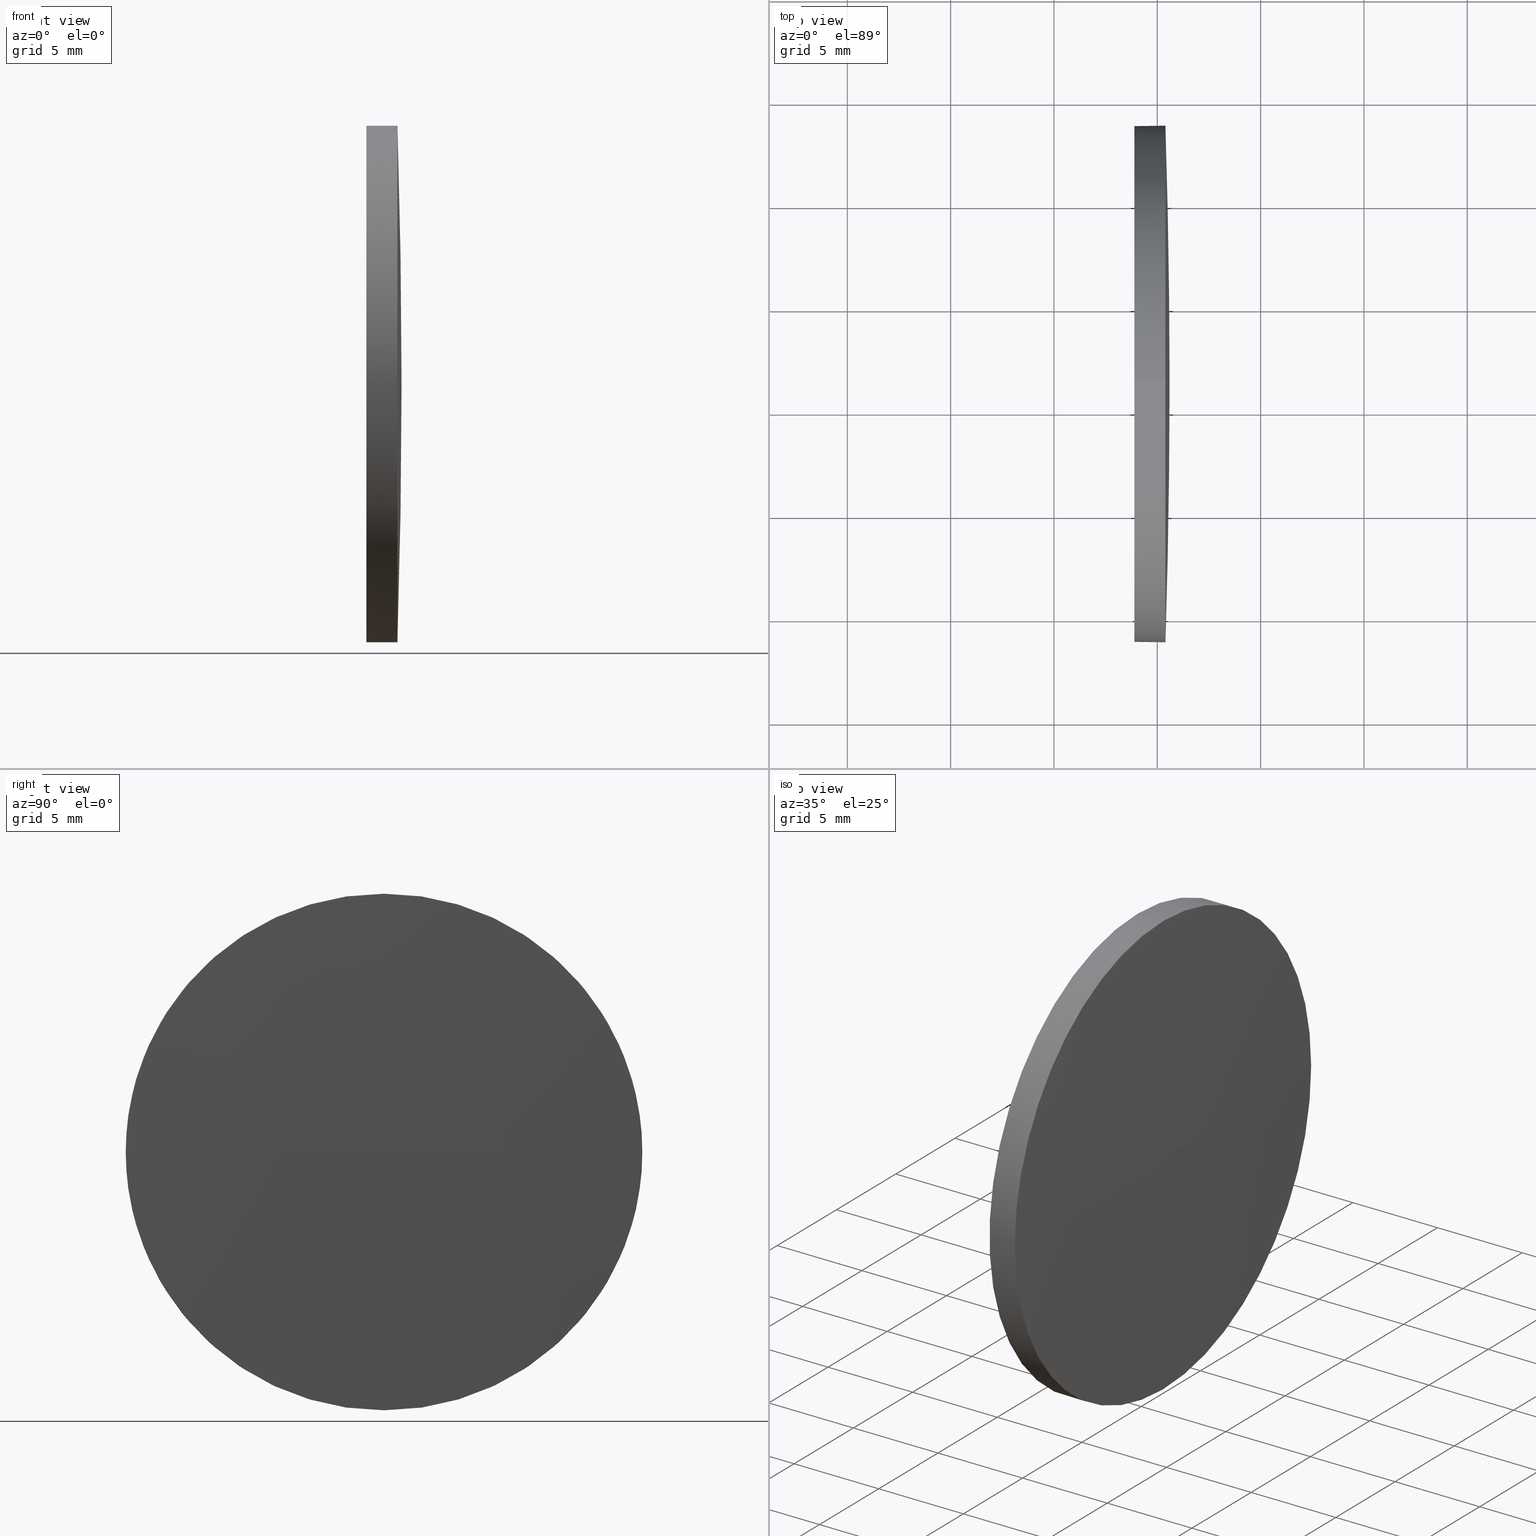
[diagram: canonical four-view strip — front | top / right | iso, engineering-drawing reading convention]
A machine part, canonical four-view strip (front | top / right | iso — engineering-drawing reading convention). The complete STEP part file that produces these views, byte-faithful:
ISO-10303-21;
HEADER;
FILE_DESCRIPTION (( 'STEP AP214' ),
    '1' );
FILE_NAME ('100053.STEP',
    '2019-04-30T01:27:28',
    ( '' ),
    ( '' ),
    'SwSTEP 2.0',
    'SolidWorks 2016',
    '' );
FILE_SCHEMA (( 'AUTOMOTIVE_DESIGN' ));
ENDSEC;

DATA;
#1 = VERTEX_POINT ( 'NONE', #86 ) ;
#2 = AXIS2_PLACEMENT_3D ( 'NONE', #125, #45, #5 ) ;
#3 = ORIENTED_EDGE ( 'NONE', *, *, #62, .T. ) ;
#4 = PRODUCT_RELATED_PRODUCT_CATEGORY ( 'part', '', ( #55 ) ) ;
#5 = DIRECTION ( 'NONE',  ( 0.0000000000000000000, 0.0000000000000000000, 1.000000000000000000 ) ) ;
#6 = CARTESIAN_POINT ( 'NONE',  ( 410.3943879828856300, 138.7827390996668800, 0.0000000000000000000 ) ) ;
#7 = CARTESIAN_POINT ( 'NONE',  ( 410.3943879828856300, 113.7827390996670000, -1.530808498934166900E-015 ) ) ;
#8 = DIRECTION ( 'NONE',  ( 1.000000000000000000, 0.0000000000000000000, 0.0000000000000000000 ) ) ;
#9 = CARTESIAN_POINT ( 'NONE',  ( 410.3943879828856900, 126.2827390996670800, -12.50000000000001100 ) ) ;
#10 = FACE_OUTER_BOUND ( 'NONE', #111, .T. ) ;
#11 = EDGE_LOOP ( 'NONE', ( #28, #176, #83, #51 ) ) ;
#12 = DIRECTION ( 'NONE',  ( 0.0000000000000000000, 0.0000000000000000000, 1.000000000000000000 ) ) ;
#13 = EDGE_CURVE ( 'NONE', #1, #160, #175, .T. ) ;
#14 = DIRECTION ( 'NONE',  ( -1.000000000000000000, -0.0000000000000000000, -0.0000000000000000000 ) ) ;
#15 = DIRECTION ( 'NONE',  ( 0.0000000000000000000, 0.0000000000000000000, 1.000000000000000000 ) ) ;
#16 = CIRCLE ( 'NONE', #171, 12.50000000000001100 ) ;
#17 = PRODUCT_DEFINITION_SHAPE ( 'NONE', 'NONE',  #110 ) ;
#18 = ORIENTED_EDGE ( 'NONE', *, *, #97, .F. ) ;
#19 =( LENGTH_UNIT ( ) NAMED_UNIT ( * ) SI_UNIT ( .MILLI., .METRE. ) );
#20 = STYLED_ITEM ( 'NONE', ( #26 ), #74 ) ;
#21 =( NAMED_UNIT ( * ) PLANE_ANGLE_UNIT ( ) SI_UNIT ( $, .RADIAN. ) );
#22 = VECTOR ( 'NONE', #25, 1000.000000000000000 ) ;
#23 = CARTESIAN_POINT ( 'NONE',  ( 19.86938798288417700, 126.2827390996668100, 0.0000000000000000000 ) ) ;
#24 = ORIENTED_EDGE ( 'NONE', *, *, #121, .T. ) ;
#25 = DIRECTION ( 'NONE',  ( -1.000000000000000000, -0.0000000000000000000, -0.0000000000000000000 ) ) ;
#26 = PRESENTATION_STYLE_ASSIGNMENT (( #103 ) ) ;
#27 = CARTESIAN_POINT ( 'NONE',  ( 408.8943879828856900, 126.2827390996670800, 0.0000000000000000000 ) ) ;
#28 = ORIENTED_EDGE ( 'NONE', *, *, #62, .F. ) ;
#29 = ADVANCED_BREP_SHAPE_REPRESENTATION ( '100053', ( #74, #64 ), #92 ) ;
#30 = AXIS2_PLACEMENT_3D ( 'NONE', #147, #106, #12 ) ;
#31 = EDGE_LOOP ( 'NONE', ( #174, #138, #37, #146, #24 ) ) ;
#32 = AXIS2_PLACEMENT_3D ( 'NONE', #84, #46, #72 ) ;
#33 = APPLICATION_CONTEXT ( 'automotive_design' ) ;
#34 =( LENGTH_UNIT ( ) NAMED_UNIT ( * ) SI_UNIT ( .MILLI., .METRE. ) );
#35 = FACE_OUTER_BOUND ( 'NONE', #40, .T. ) ;
#36 = CYLINDRICAL_SURFACE ( 'NONE', #61, 12.50000000000001100 ) ;
#37 = ORIENTED_EDGE ( 'NONE', *, *, #13, .F. ) ;
#38 = CARTESIAN_POINT ( 'NONE',  ( 19.86938798288417700, 126.2827390996668100, 0.0000000000000000000 ) ) ;
#39 = AXIS2_PLACEMENT_3D ( 'NONE', #23, #73, #56 ) ;
#40 = EDGE_LOOP ( 'NONE', ( #165, #162 ) ) ;
#41 = PRODUCT_DEFINITION_FORMATION_WITH_SPECIFIED_SOURCE ( '�κ�', '', #55, .NOT_KNOWN. ) ;
#42 = AXIS2_PLACEMENT_3D ( 'NONE', #156, #169, #182 ) ;
#43 = CIRCLE ( 'NONE', #42, 12.50000000000001100 ) ;
#44 = VERTEX_POINT ( 'NONE', #9 ) ;
#45 = DIRECTION ( 'NONE',  ( -1.000000000000000000, -0.0000000000000000000, -0.0000000000000000000 ) ) ;
#46 = DIRECTION ( 'NONE',  ( -0.0000000000000000000, 0.0000000000000000000, -1.000000000000000000 ) ) ;
#47 = DIRECTION ( 'NONE',  ( 0.0000000000000000000, 0.0000000000000000000, 1.000000000000000000 ) ) ;
#48 = UNCERTAINTY_MEASURE_WITH_UNIT (LENGTH_MEASURE( 1.000000000000000100E-005 ), #34, 'distance_accuracy_value', 'NONE');
#49 = STYLED_ITEM ( 'NONE', ( #69 ), #29 ) ;
#50 = DIRECTION ( 'NONE',  ( -1.000000000000000000, -0.0000000000000000000, -0.0000000000000000000 ) ) ;
#51 = ORIENTED_EDGE ( 'NONE', *, *, #164, .F. ) ;
#52 = CARTESIAN_POINT ( 'NONE',  ( 19.86938798288417700, 126.2827390996668100, 0.0000000000000000000 ) ) ;
#53 = DIRECTION ( 'NONE',  ( 1.000000000000000000, 0.0000000000000000000, 0.0000000000000000000 ) ) ;
#54 = CYLINDRICAL_SURFACE ( 'NONE', #155, 12.50000000000001100 ) ;
#55 = PRODUCT ( '100053', '100053', '', ( #100 ) ) ;
#56 = DIRECTION ( 'NONE',  ( 1.000000000000000000, 0.0000000000000000000, 0.0000000000000000000 ) ) ;
#57 =( GEOMETRIC_REPRESENTATION_CONTEXT ( 3 ) GLOBAL_UNCERTAINTY_ASSIGNED_CONTEXT ( ( #48 ) ) GLOBAL_UNIT_ASSIGNED_CONTEXT ( ( #34, #21, #145 ) ) REPRESENTATION_CONTEXT ( 'NONE', 'WORKASPACE' ) );
#58 = ORIENTED_EDGE ( 'NONE', *, *, #137, .F. ) ;
#59 = CARTESIAN_POINT ( 'NONE',  ( 410.5943879828856800, 126.2827390996668400, 0.0000000000000000000 ) ) ;
#60 = LINE ( 'NONE', #129, #114 ) ;
#61 = AXIS2_PLACEMENT_3D ( 'NONE', #181, #143, #89 ) ;
#62 = EDGE_CURVE ( 'NONE', #130, #94, #157, .T. ) ;
#63 = ORIENTED_EDGE ( 'NONE', *, *, #117, .T. ) ;
#64 = AXIS2_PLACEMENT_3D ( 'NONE', #66, #47, #8 ) ;
#65 = DIRECTION ( 'NONE',  ( -1.000000000000000000, -0.0000000000000000000, -0.0000000000000000000 ) ) ;
#66 = CARTESIAN_POINT ( 'NONE',  ( 0.0000000000000000000, 0.0000000000000000000, 0.0000000000000000000 ) ) ;
#67 = FILL_AREA_STYLE_COLOUR ( '', #78 ) ;
#68 = DIRECTION ( 'NONE',  ( 0.0000000000000000000, 1.000000000000000000, 1.224646799147353000E-016 ) ) ;
#69 = PRESENTATION_STYLE_ASSIGNMENT (( #85 ) ) ;
#70 = DIRECTION ( 'NONE',  ( 0.0000000000000000000, 1.000000000000000000, 0.0000000000000000000 ) ) ;
#71 = ORIENTED_EDGE ( 'NONE', *, *, #80, .F. ) ;
#72 = DIRECTION ( 'NONE',  ( 0.0000000000000000000, 1.000000000000000000, 0.0000000000000000000 ) ) ;
#73 = DIRECTION ( 'NONE',  ( -0.0000000000000000000, 0.0000000000000000000, 1.000000000000000000 ) ) ;
#74 = MANIFOLD_SOLID_BREP ( '��ת1', #124 ) ;
#75 = AXIS2_PLACEMENT_3D ( 'NONE', #38, #180, #68 ) ;
#76 = CARTESIAN_POINT ( 'NONE',  ( 410.3943879828856900, 126.2827390996670800, 12.50000000000001100 ) ) ;
#77 = ADVANCED_FACE ( 'NONE', ( #119 ), #36, .T. ) ;
#78 = COLOUR_RGB ( '',1.000000000000000000, 1.000000000000000000, 1.000000000000000000 ) ;
#79 = ORIENTED_EDGE ( 'NONE', *, *, #113, .F. ) ;
#80 = EDGE_CURVE ( 'NONE', #44, #160, #60, .T. ) ;
#81 = SURFACE_STYLE_FILL_AREA ( #87 ) ;
#82 = SPHERICAL_SURFACE ( 'NONE', #179, 390.7250000000015000 ) ;
#83 = ORIENTED_EDGE ( 'NONE', *, *, #121, .F. ) ;
#84 = CARTESIAN_POINT ( 'NONE',  ( 19.86938798288417700, 126.2827390996668100, 0.0000000000000000000 ) ) ;
#85 = SURFACE_STYLE_USAGE ( .BOTH. , #154 ) ;
#86 = CARTESIAN_POINT ( 'NONE',  ( 408.8943879828856900, 126.2827390996670800, 12.50000000000001100 ) ) ;
#87 = FILL_AREA_STYLE ('',( #142 ) ) ;
#88 = SURFACE_SIDE_STYLE ('',( #81 ) ) ;
#89 = DIRECTION ( 'NONE',  ( 0.0000000000000000000, 0.0000000000000000000, 1.000000000000000000 ) ) ;
#90 = DIRECTION ( 'NONE',  ( 0.0000000000000000000, 0.0000000000000000000, 1.000000000000000000 ) ) ;
#91 = CARTESIAN_POINT ( 'NONE',  ( 404.1523567409958000, 126.2827390996670800, 12.50000000000001100 ) ) ;
#92 =( GEOMETRIC_REPRESENTATION_CONTEXT ( 3 ) GLOBAL_UNCERTAINTY_ASSIGNED_CONTEXT ( ( #172 ) ) GLOBAL_UNIT_ASSIGNED_CONTEXT ( ( #159, #128, #158 ) ) REPRESENTATION_CONTEXT ( 'NONE', 'WORKASPACE' ) );
#93 = CARTESIAN_POINT ( 'NONE',  ( 404.1523567409958000, 126.2827390996670800, 0.0000000000000000000 ) ) ;
#94 = VERTEX_POINT ( 'NONE', #7 ) ;
#95 = ADVANCED_FACE ( 'NONE', ( #123 ), #82, .T. ) ;
#96 = PRESENTATION_LAYER_ASSIGNMENT (  '', '', ( #49 ) ) ;
#97 = EDGE_CURVE ( 'NONE', #44, #94, #43, .T. ) ;
#98 = COLOUR_RGB ( '',1.000000000000000000, 1.000000000000000000, 1.000000000000000000 ) ;
#99 = LINE ( 'NONE', #91, #22 ) ;
#100 = PRODUCT_CONTEXT ( 'NONE', #101, 'mechanical' ) ;
#101 = APPLICATION_CONTEXT ( 'automotive_design' ) ;
#102 = EDGE_CURVE ( 'NONE', #166, #44, #150, .T. ) ;
#103 = SURFACE_STYLE_USAGE ( .BOTH. , #88 ) ;
#104 = CARTESIAN_POINT ( 'NONE',  ( 408.8943879828856900, 126.2827390996670800, 0.0000000000000000000 ) ) ;
#105 = CIRCLE ( 'NONE', #39, 390.7250000000015000 ) ;
#106 = DIRECTION ( 'NONE',  ( -1.000000000000000000, -0.0000000000000000000, -0.0000000000000000000 ) ) ;
#107 = MECHANICAL_DESIGN_GEOMETRIC_PRESENTATION_REPRESENTATION (  '', ( #49 ), #122 ) ;
#108 = ADVANCED_FACE ( 'NONE', ( #35 ), #131, .F. ) ;
#109 = CIRCLE ( 'NONE', #2, 12.50000000000001100 ) ;
#110 = PRODUCT_DEFINITION ( 'δ֪', '', #41, #183 ) ;
#111 = EDGE_LOOP ( 'NONE', ( #79, #3, #18, #153 ) ) ;
#112 = EDGE_LOOP ( 'NONE', ( #71, #151, #120, #63, #58 ) ) ;
#113 = EDGE_CURVE ( 'NONE', #130, #166, #105, .T. ) ;
#114 = VECTOR ( 'NONE', #50, 1000.000000000000000 ) ;
#115 =( NAMED_UNIT ( * ) SI_UNIT ( $, .STERADIAN. ) SOLID_ANGLE_UNIT ( ) );
#116 = AXIS2_PLACEMENT_3D ( 'NONE', #127, #53, #170 ) ;
#117 = EDGE_CURVE ( 'NONE', #132, #1, #99, .T. ) ;
#118 = CIRCLE ( 'NONE', #149, 12.50000000000001100 ) ;
#119 = FACE_OUTER_BOUND ( 'NONE', #31, .T. ) ;
#120 = ORIENTED_EDGE ( 'NONE', *, *, #164, .T. ) ;
#121 = EDGE_CURVE ( 'NONE', #132, #166, #16, .T. ) ;
#122 =( GEOMETRIC_REPRESENTATION_CONTEXT ( 3 ) GLOBAL_UNCERTAINTY_ASSIGNED_CONTEXT ( ( #141 ) ) GLOBAL_UNIT_ASSIGNED_CONTEXT ( ( #19, #178, #115 ) ) REPRESENTATION_CONTEXT ( 'NONE', 'WORKASPACE' ) );
#123 = FACE_OUTER_BOUND ( 'NONE', #11, .T. ) ;
#124 = CLOSED_SHELL ( 'NONE', ( #77, #184, #95, #148, #108 ) ) ;
#125 = CARTESIAN_POINT ( 'NONE',  ( 410.3943879828856900, 126.2827390996670800, 0.0000000000000000000 ) ) ;
#126 = AXIS2_PLACEMENT_3D ( 'NONE', #104, #65, #90 ) ;
#127 = CARTESIAN_POINT ( 'NONE',  ( 408.8943879828856900, 126.2827390996670800, 0.0000000000000000000 ) ) ;
#128 =( NAMED_UNIT ( * ) PLANE_ANGLE_UNIT ( ) SI_UNIT ( $, .RADIAN. ) );
#129 = CARTESIAN_POINT ( 'NONE',  ( 404.1523567409958000, 126.2827390996670800, -12.50000000000001100 ) ) ;
#130 = VERTEX_POINT ( 'NONE', #59 ) ;
#131 = PLANE ( 'NONE',  #116 ) ;
#132 = VERTEX_POINT ( 'NONE', #76 ) ;
#133 = DIRECTION ( 'NONE',  ( -1.000000000000000000, -0.0000000000000000000, -0.0000000000000000000 ) ) ;
#134 = DIRECTION ( 'NONE',  ( 0.0000000000000000000, 0.0000000000000000000, 1.000000000000000000 ) ) ;
#135 = SURFACE_STYLE_FILL_AREA ( #167 ) ;
#136 = PRESENTATION_LAYER_ASSIGNMENT (  '', '', ( #20 ) ) ;
#137 = EDGE_CURVE ( 'NONE', #160, #1, #118, .T. ) ;
#138 = ORIENTED_EDGE ( 'NONE', *, *, #80, .T. ) ;
#139 = APPLICATION_PROTOCOL_DEFINITION ( 'draft international standard', 'automotive_design', 1998, #33 ) ;
#140 = DIRECTION ( 'NONE',  ( -0.0000000000000000000, 0.0000000000000000000, -1.000000000000000000 ) ) ;
#141 = UNCERTAINTY_MEASURE_WITH_UNIT (LENGTH_MEASURE( 1.000000000000000100E-005 ), #19, 'distance_accuracy_value', 'NONE');
#142 = FILL_AREA_STYLE_COLOUR ( '', #98 ) ;
#143 = DIRECTION ( 'NONE',  ( -1.000000000000000000, -0.0000000000000000000, -0.0000000000000000000 ) ) ;
#144 = SHAPE_DEFINITION_REPRESENTATION ( #17, #29 ) ;
#145 =( NAMED_UNIT ( * ) SI_UNIT ( $, .STERADIAN. ) SOLID_ANGLE_UNIT ( ) );
#146 = ORIENTED_EDGE ( 'NONE', *, *, #117, .F. ) ;
#147 = CARTESIAN_POINT ( 'NONE',  ( 410.3943879828856900, 126.2827390996670800, 0.0000000000000000000 ) ) ;
#148 = ADVANCED_FACE ( 'NONE', ( #161 ), #54, .T. ) ;
#149 = AXIS2_PLACEMENT_3D ( 'NONE', #27, #133, #134 ) ;
#150 = CIRCLE ( 'NONE', #30, 12.50000000000001100 ) ;
#151 = ORIENTED_EDGE ( 'NONE', *, *, #97, .T. ) ;
#152 = SPHERICAL_SURFACE ( 'NONE', #32, 390.7250000000015000 ) ;
#153 = ORIENTED_EDGE ( 'NONE', *, *, #102, .F. ) ;
#154 = SURFACE_SIDE_STYLE ('',( #135 ) ) ;
#155 = AXIS2_PLACEMENT_3D ( 'NONE', #93, #185, #173 ) ;
#156 = CARTESIAN_POINT ( 'NONE',  ( 410.3943879828856900, 126.2827390996670800, 0.0000000000000000000 ) ) ;
#157 = CIRCLE ( 'NONE', #75, 390.7250000000015600 ) ;
#158 =( NAMED_UNIT ( * ) SI_UNIT ( $, .STERADIAN. ) SOLID_ANGLE_UNIT ( ) );
#159 =( LENGTH_UNIT ( ) NAMED_UNIT ( * ) SI_UNIT ( .MILLI., .METRE. ) );
#160 = VERTEX_POINT ( 'NONE', #177 ) ;
#161 = FACE_OUTER_BOUND ( 'NONE', #112, .T. ) ;
#162 = ORIENTED_EDGE ( 'NONE', *, *, #137, .T. ) ;
#163 = MECHANICAL_DESIGN_GEOMETRIC_PRESENTATION_REPRESENTATION (  '', ( #20 ), #57 ) ;
#164 = EDGE_CURVE ( 'NONE', #94, #132, #109, .T. ) ;
#165 = ORIENTED_EDGE ( 'NONE', *, *, #13, .T. ) ;
#166 = VERTEX_POINT ( 'NONE', #6 ) ;
#167 = FILL_AREA_STYLE ('',( #67 ) ) ;
#168 = APPLICATION_PROTOCOL_DEFINITION ( 'draft international standard', 'automotive_design', 1998, #101 ) ;
#169 = DIRECTION ( 'NONE',  ( -1.000000000000000000, -0.0000000000000000000, -0.0000000000000000000 ) ) ;
#170 = DIRECTION ( 'NONE',  ( 0.0000000000000000000, 0.0000000000000000000, -1.000000000000000000 ) ) ;
#171 = AXIS2_PLACEMENT_3D ( 'NONE', #186, #14, #15 ) ;
#172 = UNCERTAINTY_MEASURE_WITH_UNIT (LENGTH_MEASURE( 1.000000000000000100E-005 ), #159, 'distance_accuracy_value', 'NONE');
#173 = DIRECTION ( 'NONE',  ( 0.0000000000000000000, 0.0000000000000000000, 1.000000000000000000 ) ) ;
#174 = ORIENTED_EDGE ( 'NONE', *, *, #102, .T. ) ;
#175 = CIRCLE ( 'NONE', #126, 12.50000000000001100 ) ;
#176 = ORIENTED_EDGE ( 'NONE', *, *, #113, .T. ) ;
#177 = CARTESIAN_POINT ( 'NONE',  ( 408.8943879828856900, 126.2827390996670800, -12.50000000000001100 ) ) ;
#178 =( NAMED_UNIT ( * ) PLANE_ANGLE_UNIT ( ) SI_UNIT ( $, .RADIAN. ) );
#179 = AXIS2_PLACEMENT_3D ( 'NONE', #52, #140, #70 ) ;
#180 = DIRECTION ( 'NONE',  ( 0.0000000000000000000, 1.224646799147353200E-016, -1.000000000000000000 ) ) ;
#181 = CARTESIAN_POINT ( 'NONE',  ( 404.1523567409958000, 126.2827390996670800, 0.0000000000000000000 ) ) ;
#182 = DIRECTION ( 'NONE',  ( 0.0000000000000000000, 0.0000000000000000000, 1.000000000000000000 ) ) ;
#183 = PRODUCT_DEFINITION_CONTEXT ( 'detailed design', #33, 'design' ) ;
#184 = ADVANCED_FACE ( 'NONE', ( #10 ), #152, .T. ) ;
#185 = DIRECTION ( 'NONE',  ( -1.000000000000000000, -0.0000000000000000000, -0.0000000000000000000 ) ) ;
#186 = CARTESIAN_POINT ( 'NONE',  ( 410.3943879828856900, 126.2827390996670800, 0.0000000000000000000 ) ) ;
ENDSEC;
END-ISO-10303-21;
